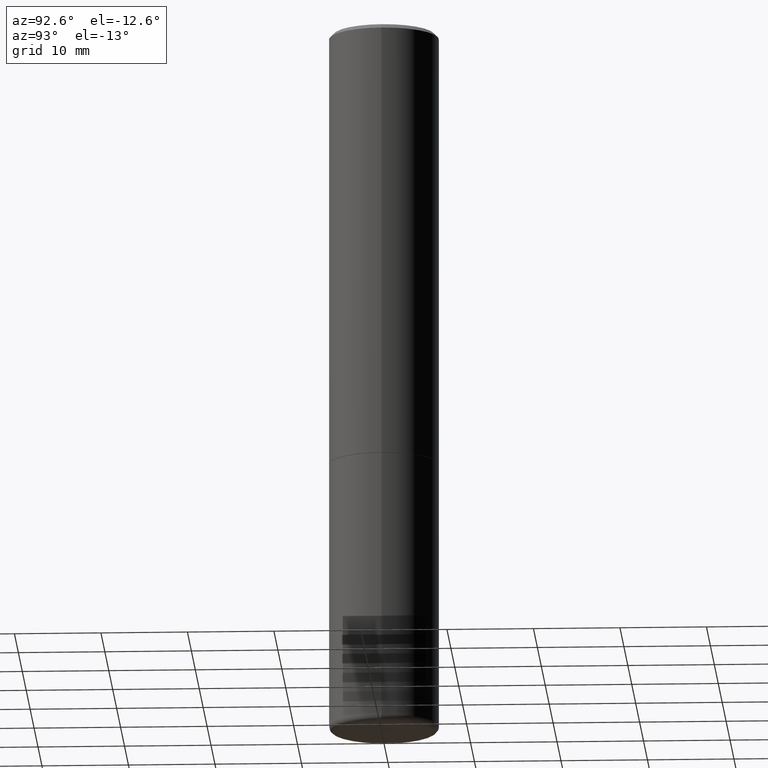
[diagram: clean part render]
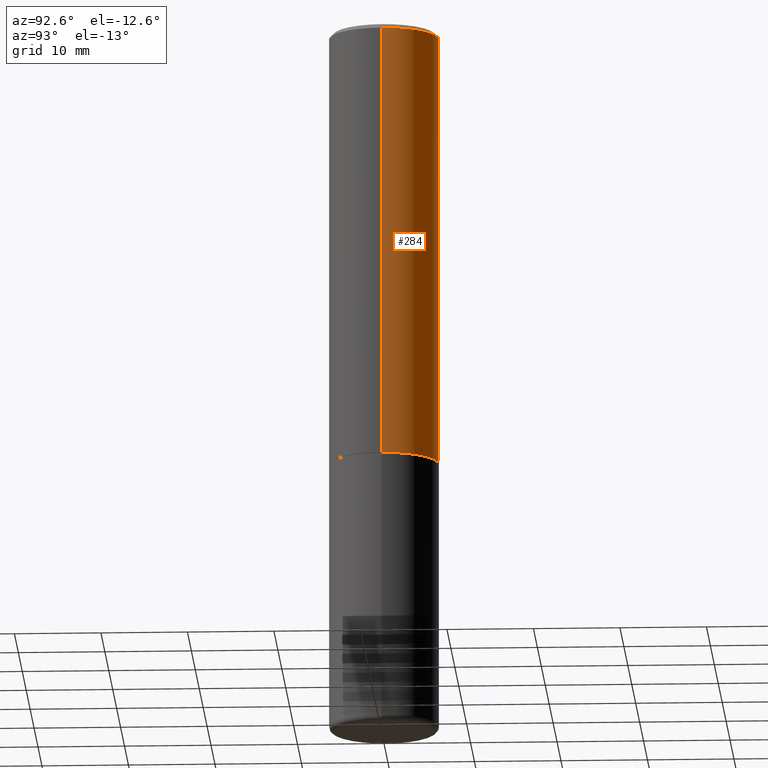
[diagram: same view with one face highlighted and labeled with its STEP entity id]
A machine part, auxiliary view. The second image highlights one B-rep face of the part: STEP entity #284.
In plain terms, the highlighted cylindrical surface (partial cylindrical patch) has radius 6.35 mm, axis along (-0, 0, 1).
Its self-contained STEP definition (entity closure, byte-faithful):
#9 = EDGE_CURVE ( 'NONE', #410, #307, #237, .T. ) ;
#10 = CARTESIAN_POINT ( 'NONE',  ( -0.2500000000000001110, 1.776356839400251254E-15, -1.229733772563727006E-29 ) ) ;
#13 = DIRECTION ( 'NONE',  ( 1.000000000000000000, -6.982962677686267499E-15, 0.000000000000000000 ) ) ;
#28 = EDGE_CURVE ( 'NONE', #285, #307, #411, .T. ) ;
#37 = DIRECTION ( 'NONE',  ( -2.445468806185136877E-29, 3.491481338843145188E-15, 1.000000000000000000 ) ) ;
#52 = EDGE_LOOP ( 'NONE', ( #287, #322, #58, #308 ) ) ;
#58 = ORIENTED_EDGE ( 'NONE', *, *, #28, .F. ) ;
#71 = CARTESIAN_POINT ( 'NONE',  ( -0.2500000000000002776, -1.748293572161900530E-15, -1.998999999999999888 ) ) ;
#87 = CIRCLE ( 'NONE', #185, 0.2500000000000002776 ) ;
#109 = AXIS2_PLACEMENT_3D ( 'NONE', #257, #414, #223 ) ;
#114 = EDGE_CURVE ( 'NONE', #369, #285, #366, .T. ) ;
#133 = DIRECTION ( 'NONE',  ( -2.445468806185136877E-29, 3.491481338843145188E-15, 1.000000000000000000 ) ) ;
#142 = CARTESIAN_POINT ( 'NONE',  ( 4.888492143564087591E-29, -6.979471196347447369E-15, -1.998999999999999888 ) ) ;
#148 = EDGE_CURVE ( 'NONE', #369, #410, #87, .T. ) ;
#160 = VECTOR ( 'NONE', #133, 39.37007874015748143 ) ;
#164 = CARTESIAN_POINT ( 'NONE',  ( 4.890937612370287172E-31, -6.982962677686310098E-17, -0.02000000000000005593 ) ) ;
#181 = VECTOR ( 'NONE', #37, 39.37007874015748143 ) ;
#185 = AXIS2_PLACEMENT_3D ( 'NONE', #142, #249, #375 ) ;
#223 = DIRECTION ( 'NONE',  ( 1.000000000000000000, -6.982962677686266711E-15, 4.876176775795935793E-29 ) ) ;
#229 = FACE_OUTER_BOUND ( 'NONE', #52, .T. ) ;
#237 = LINE ( 'NONE', #10, #160 ) ;
#249 = DIRECTION ( 'NONE',  ( -2.445468806185136597E-29, 3.491481338843145583E-15, 1.000000000000000000 ) ) ;
#255 = AXIS2_PLACEMENT_3D ( 'NONE', #164, #309, #13 ) ;
#257 = CARTESIAN_POINT ( 'NONE',  ( 0.000000000000000000, 0.000000000000000000, 0.000000000000000000 ) ) ;
#262 = CARTESIAN_POINT ( 'NONE',  ( 0.2499999999999999167, -1.784954126219745400E-15, -0.02000000000000005593 ) ) ;
#270 = CARTESIAN_POINT ( 'NONE',  ( 0.2500000000000001110, -1.745740669421567467E-15, 1.219044193948984509E-29 ) ) ;
#284 = ADVANCED_FACE ( 'NONE', ( #229 ), #413, .T. ) ;
#285 = VERTEX_POINT ( 'NONE', #262 ) ;
#287 = ORIENTED_EDGE ( 'NONE', *, *, #148, .T. ) ;
#301 = CARTESIAN_POINT ( 'NONE',  ( -0.2499999999999999167, 1.675911042644703182E-15, -0.02000000000000005593 ) ) ;
#307 = VERTEX_POINT ( 'NONE', #301 ) ;
#308 = ORIENTED_EDGE ( 'NONE', *, *, #114, .F. ) ;
#309 = DIRECTION ( 'NONE',  ( -2.445468806185136597E-29, 3.491481338843145583E-15, 1.000000000000000000 ) ) ;
#322 = ORIENTED_EDGE ( 'NONE', *, *, #9, .T. ) ;
#327 = CARTESIAN_POINT ( 'NONE',  ( 0.2500000000000002776, -8.725211865769015625E-15, -1.998999999999999888 ) ) ;
#366 = LINE ( 'NONE', #270, #181 ) ;
#369 = VERTEX_POINT ( 'NONE', #327 ) ;
#375 = DIRECTION ( 'NONE',  ( 1.000000000000000000, -6.982962677686266711E-15, 0.000000000000000000 ) ) ;
#410 = VERTEX_POINT ( 'NONE', #71 ) ;
#411 = CIRCLE ( 'NONE', #255, 0.2499999999999999167 ) ;
#413 = CYLINDRICAL_SURFACE ( 'NONE', #109, 0.2500000000000001110 ) ;
#414 = DIRECTION ( 'NONE',  ( -2.445468806185136597E-29, 3.491481338843145583E-15, 1.000000000000000000 ) ) ;